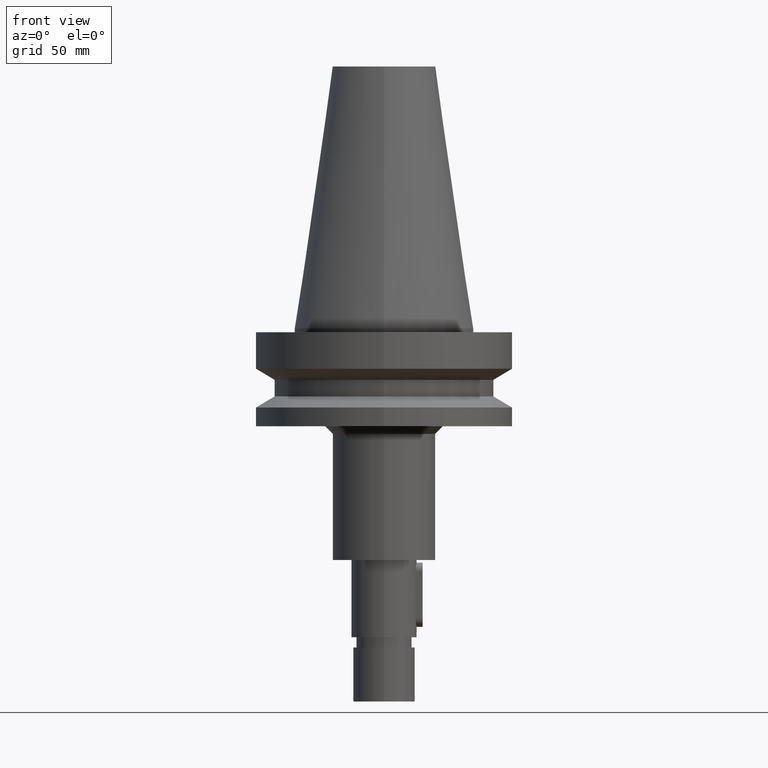
[diagram: clean part render]
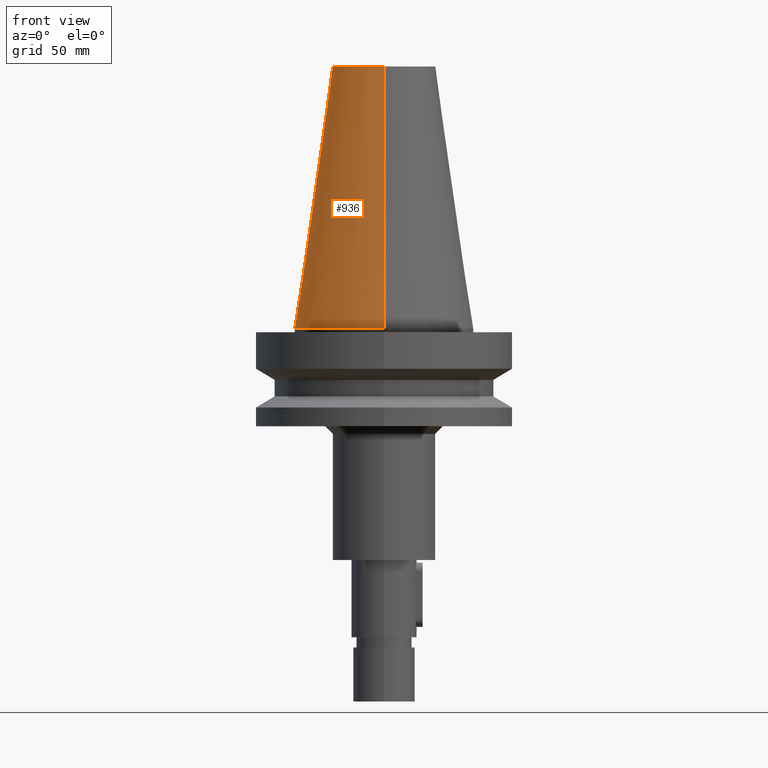
[diagram: same view with one face highlighted and labeled with its STEP entity id]
A machine part, front view. The second image highlights one B-rep face of the part: STEP entity #936.
In plain terms, the highlighted conical surface has half-angle 8.297 deg.
Its self-contained STEP definition (entity closure, byte-faithful):
#102=CARTESIAN_POINT('',(0.E0,1.847992019913E-14,1.018E2));
#103=DIRECTION('',(0.E0,0.E0,-1.E0));
#104=DIRECTION('',(0.E0,-1.E0,0.E0));
#105=AXIS2_PLACEMENT_3D('',#102,#103,#104);
#126=DIRECTION('',(0.E0,1.443043893539E-1,-9.895333461856E-1));
#127=VECTOR('',#126,1.028767755957E2);
#128=CARTESIAN_POINT('',(0.E0,2.007942971896E1,1.018E2));
#129=LINE('',#128,#127);
#141=DIRECTION('',(0.E0,-1.443043893539E-1,-9.895333461856E-1));
#142=VECTOR('',#141,1.028767755957E2);
#143=CARTESIAN_POINT('',(0.E0,-2.007942971896E1,1.018E2));
#144=LINE('',#143,#142);
#148=CARTESIAN_POINT('',(0.E0,1.847992019913E-14,3.979039320257E-13));
#149=DIRECTION('',(0.E0,0.E0,-1.E0));
#150=DIRECTION('',(0.E0,-1.E0,0.E0));
#151=AXIS2_PLACEMENT_3D('',#148,#149,#150);
#718=CARTESIAN_POINT('',(0.E0,2.007942971896E1,1.018E2));
#719=CARTESIAN_POINT('',(0.E0,-2.007942971896E1,1.018E2));
#720=VERTEX_POINT('',#718);
#721=VERTEX_POINT('',#719);
#722=CARTESIAN_POINT('',(0.E0,3.4925E1,4.831690603169E-13));
#723=VERTEX_POINT('',#722);
#724=CARTESIAN_POINT('',(0.E0,-3.4925E1,3.979039320257E-13));
#725=VERTEX_POINT('',#724);
#924=CARTESIAN_POINT('',(0.E0,1.847992019913E-14,5.09E1));
#925=DIRECTION('',(0.E0,0.E0,-1.E0));
#926=DIRECTION('',(0.E0,-1.E0,0.E0));
#927=AXIS2_PLACEMENT_3D('',#924,#925,#926);
#928=CONICAL_SURFACE('',#927,2.750221485948E1,8.297E0);
#929=ORIENTED_EDGE('',*,*,#914,.F.);
#930=ORIENTED_EDGE('',*,*,#900,.F.);
#931=ORIENTED_EDGE('',*,*,#918,.T.);
#933=ORIENTED_EDGE('',*,*,#932,.T.);
#934=EDGE_LOOP('',(#929,#930,#931,#933));
#935=FACE_OUTER_BOUND('',#934,.F.);
#106=CIRCLE('',#105,2.007942971896E1);
#152=CIRCLE('',#151,3.4925E1);
#900=EDGE_CURVE('',#721,#720,#106,.T.);
#914=EDGE_CURVE('',#720,#723,#129,.T.);
#918=EDGE_CURVE('',#721,#725,#144,.T.);
#932=EDGE_CURVE('',#725,#723,#152,.T.);
#936=ADVANCED_FACE('',(#935),#928,.T.);